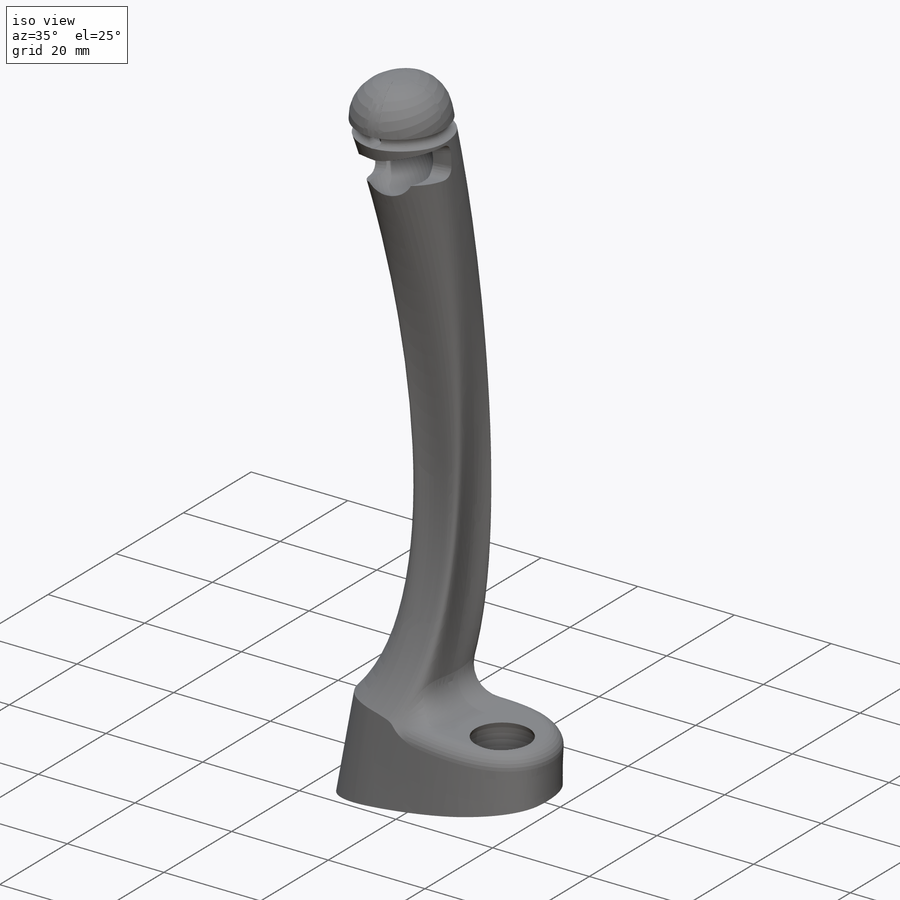
[diagram: iso view]
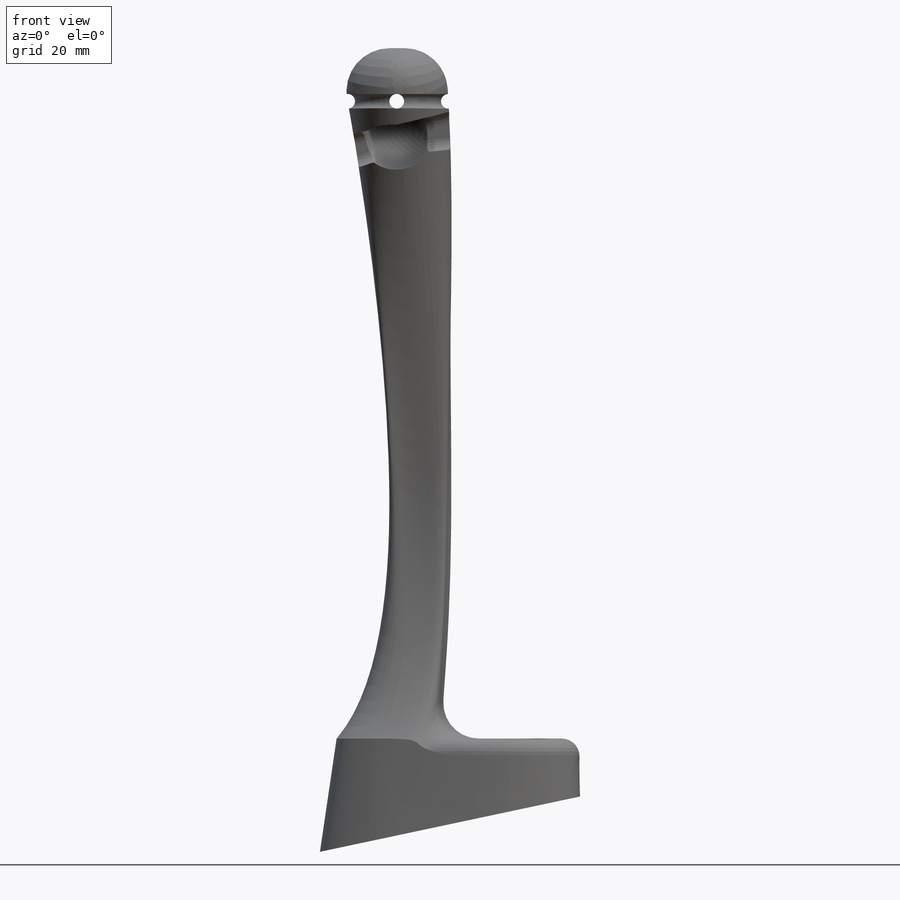
[diagram: front view]
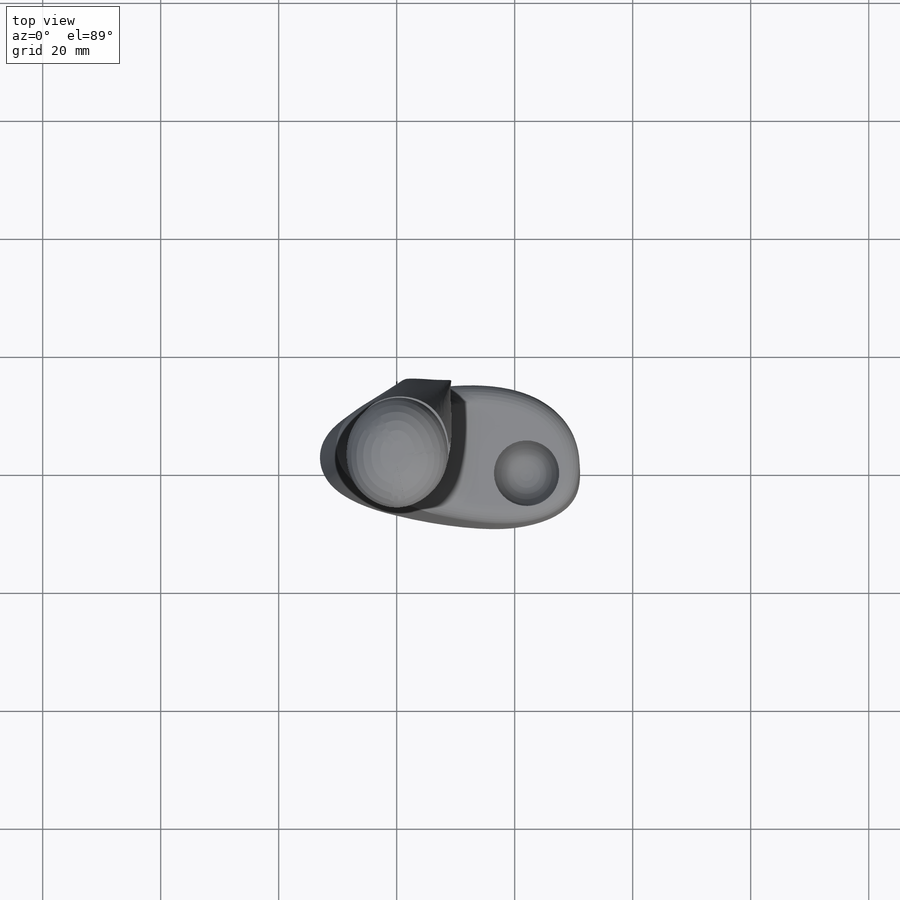
[diagram: top view]
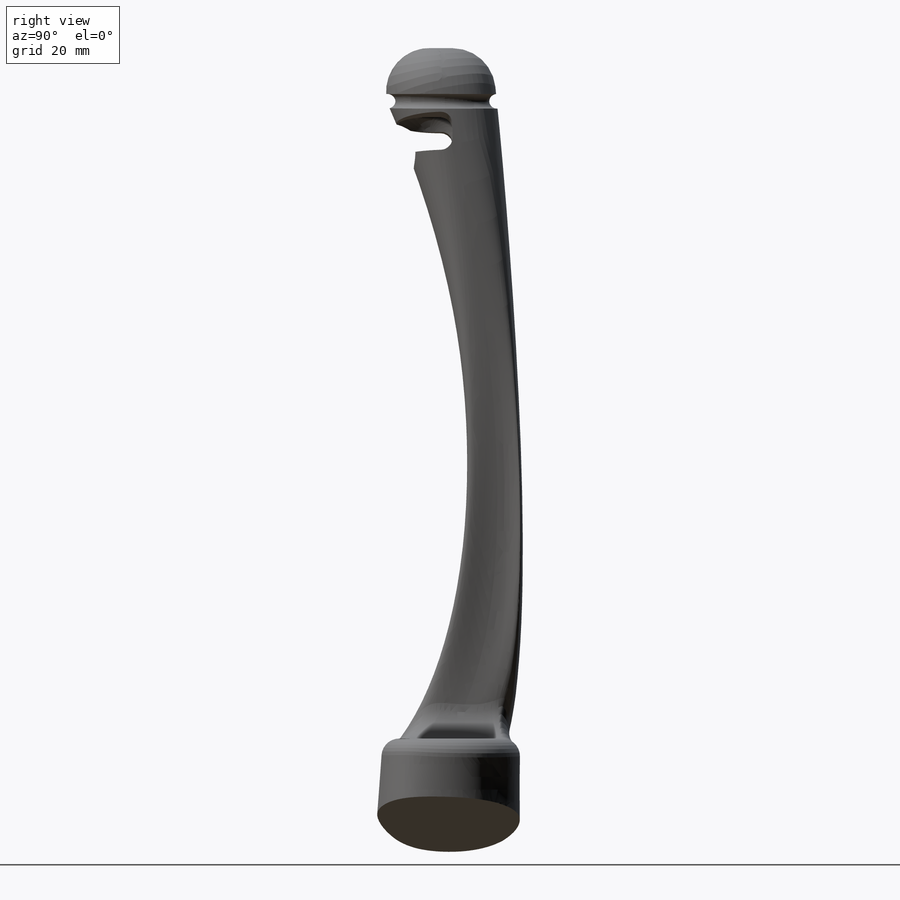
[diagram: right view]
SOLIDWORKS PART (.sldprt)
format: sldprt  version: not decoded by parser v0  size: 1,649,664 bytes
history: native  units: mm
features: sketch x22, plane x9, fillet x4, cut_extrude x2, material x1, surface_op x1, sweep x1, move_body x1 (+9 scaffold rows collapsed; 1 parser-record rows omitted)
feature tree (51):
  scaffold x9  (default folders/planes/origin — collapsed)
  material  "Material <nicht festgelegt>"
  plane  "Vorne"
  plane  "Oben"
  plane  "Rechts"
  sketch  "Skizze1"  dims[D1=20.0mm D2=2.0mm D3=105.0mm]
  sketch  "Skizze2"  dims[c1.D1=6.3mm c2.D1=360.0deg]
  sketch  "Skizze3"  dims[c1.D1=6.3mm c2.D1=360.0deg]
  plane  "Ebene1"  Offset=15mm
  plane  "Ebene2"
  plane  "Ebene3"  Offset=20mm
  sketch  "Skizze4"  dims[D1=2.5mm D2=2.5mm D3=12.0mm D4=33.0mm D5=10.0mm D6=15.0mm]
  plane  "Ebene4"  Offset=3mm
  plane  "Ebene5"
  sketch  "Skizze7"  dims[D1=10.0mm D2=12.0mm D3=8.0mm D4=10.0mm]
  sketch  "Skizze8"  dims[D1=27.0mm D2=20.0mm]
  sketch  "3D-Skizze1"
  sketch  "Skizze9"  dims[D1=11.0mm D2=24.0mm D3=21.0mm]
  sketch  "Skizze10"  dims[D1=20.0mm D2=15.0mm D3=15.0mm D4=35.0mm]
  sketch  "Oberfläche-Trimmen2"
  sketch  "Oberfläche-Trimmen4"
  sketch  "Oberfläche-Trimmen6"
  sketch  "Oberfläche-Trimmen7"
  sketch  "Oberfläche-Trimmen8"
  sketch  "Skizze11"  dims[c1.D1=~63.491796mm c2.D1=12.0deg c2.D2=15.0mm c2.D3=35.0mm c2.D4=14.0mm]
  surface_op  "Oberfläche-Linear austragen1"
  sketch  "Oberfläche-Trimmen9"
  fillet  "Verrundung2"  Radius=3mm
  fillet  "Verrundung4"  Radius=6mm
  sketch  "Skizze14"  dims[c1.D1=~14.375802mm c2.D1=12.0deg c2.D2=6.0mm c3.D1=~14.375802mm c4.D1=11.0deg c4.D2=25.0mm c4.D3=4.0mm c4.D4=4.0mm c4.D5=2.5mm c4.D6=2.0mm c4.D7=9.0mm c4.D8=10.0mm c4.D9=2.0mm c4.D10=3.0mm]
  cut_extrude  "Schnitt-Linear austragen3"  Depth=3.5mm
  sketch  "Skizze13"  dims[D1=1.5mm D2=5.0mm D3=3.5mm D4=1.5mm D5=7.0mm]
  fillet  "Verrundung6"  Radius=2mm
  sketch  "Skizze15"  dims[c1.D1=24.2mm c2.D1=102.0deg c2.D2=9.0mm c2.D3=10.0mm c2.D4=2.5mm]
  fillet  "Verrundung5"  Radius=7.3mm
  plane  "Ebene6"  Offset=6mm
  sketch  "Skizze16"
  sketch  "Skizze17"  dims[D1=2.5mm]
  sweep  "Schnitt-Austragung1"
  sketch  "Skizze18"  dims[D1=2.5mm]
  cut_extrude  "Schnitt-Linear austragen4"  [1 undecoded]
  parser-record x1  (decoder bookkeeping rows leaked as tree rows — omitted from the tree; the rows remain in map.json)
  move_body  "Körper-Verschieben/Kopieren1"
decode coverage: 19 of 31 modeling features carry decoded parameters
note: ~ marks probable driven/reference dimensions
note: 1 parameter value undecoded
note: suppression state not decoded; provenance and decode notes live in map.json
